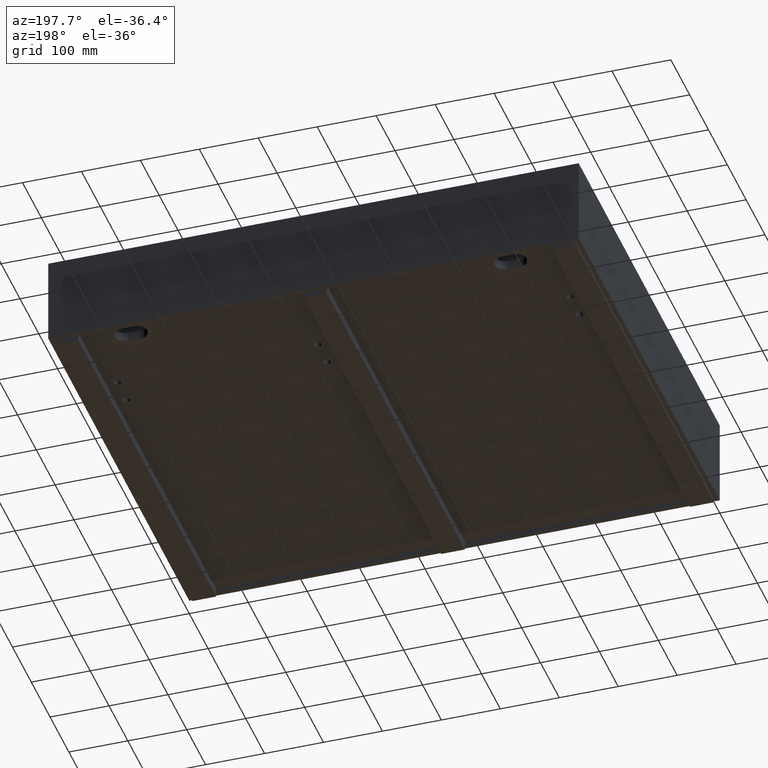
[diagram: clean part render]
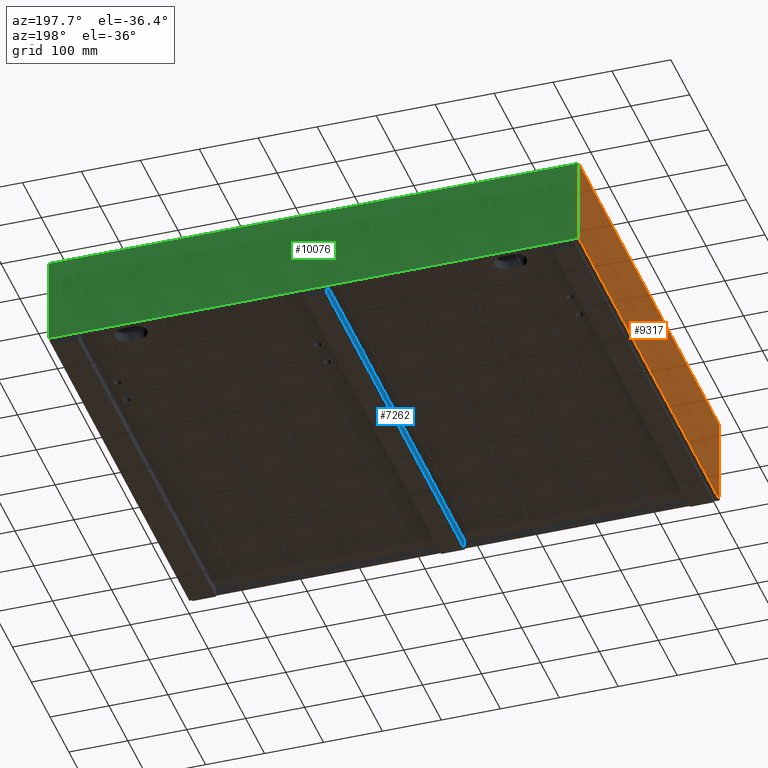
[diagram: same view with three faces highlighted in distinct colors, each labeled with its STEP entity id]
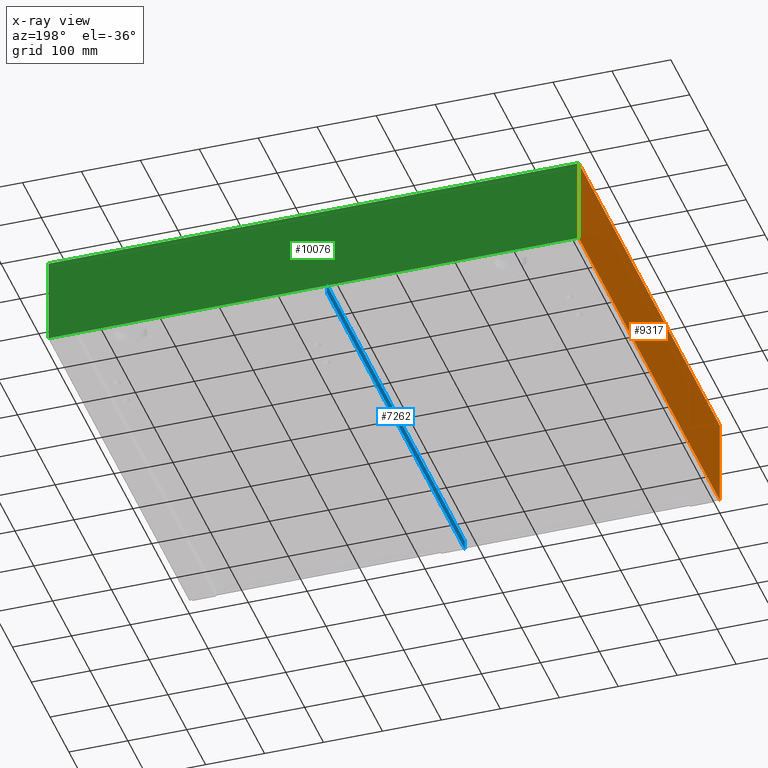
[diagram: x-ray of the same camera — body ghosted, the three highlighted faces saturated]
A machine part, auxiliary view with three faces highlighted in distinct colors.
The next image is the same camera in x-ray (body ghosted, the three faces saturated) — at least one of them is partly hidden behind the body in this view.
Their STEP definitions:

[orange] entity #9317 — the highlighted planar face has unit normal (1, 0, -0).
#1019 = LINE ( 'NONE', #4453, #10486 ) ;
#1508 = DIRECTION ( 'NONE',  ( -1.734723475976806709E-18, -2.435219723356112993E-19, -1.000000000000000000 ) ) ;
#1509 = VERTEX_POINT ( 'NONE', #2641 ) ;
#1643 = CARTESIAN_POINT ( 'NONE',  ( -8.673617379884035472E-16, 750.0000000000001137, -150.0000000000000284 ) ) ;
#1646 = ORIENTED_EDGE ( 'NONE', *, *, #7621, .F. ) ;
#1659 = ORIENTED_EDGE ( 'NONE', *, *, #4959, .T. ) ;
#2169 = CARTESIAN_POINT ( 'NONE',  ( -8.673617379884035472E-16, -1.665334536937734811E-13, 1.387778780781445676E-14 ) ) ;
#2297 = VERTEX_POINT ( 'NONE', #6967 ) ;
#2346 = PLANE ( 'NONE',  #5643 ) ;
#2641 = CARTESIAN_POINT ( 'NONE',  ( -8.673617379884035472E-16, -5.551115123125782702E-14, -150.0000000000000284 ) ) ;
#2865 = LINE ( 'NONE', #6319, #5410 ) ;
#3049 = EDGE_CURVE ( 'NONE', #1509, #9682, #11035, .T. ) ;
#3301 = CARTESIAN_POINT ( 'NONE',  ( -8.673617379884035472E-16, -5.551115123125782702E-14, -150.0000000000000284 ) ) ;
#4200 = ORIENTED_EDGE ( 'NONE', *, *, #6648, .F. ) ;
#4453 = CARTESIAN_POINT ( 'NONE',  ( -8.673617379884035472E-16, 900.2131818450033052, 1.387778780781445676E-14 ) ) ;
#4959 = EDGE_CURVE ( 'NONE', #6953, #1509, #2865, .T. ) ;
#5079 = DIRECTION ( 'NONE',  ( 1.734723475976806709E-18, 2.435219723356112993E-19, 1.000000000000000000 ) ) ;
#5410 = VECTOR ( 'NONE', #9768, 1000.000000000000000 ) ;
#5615 = ORIENTED_EDGE ( 'NONE', *, *, #3049, .T. ) ;
#5643 = AXIS2_PLACEMENT_3D ( 'NONE', #5786, #9237, #1508 ) ;
#5786 = CARTESIAN_POINT ( 'NONE',  ( -8.673617379884035472E-16, 900.2131818450034189, -150.0000000000000284 ) ) ;
#6059 = VECTOR ( 'NONE', #6746, 1000.000000000000000 ) ;
#6319 = CARTESIAN_POINT ( 'NONE',  ( -8.673617379884035472E-16, 900.2131818450034189, -150.0000000000000284 ) ) ;
#6648 = EDGE_CURVE ( 'NONE', #2297, #9682, #1019, .T. ) ;
#6746 = DIRECTION ( 'NONE',  ( 1.734723475976806709E-18, 2.435219723356112993E-19, 1.000000000000000000 ) ) ;
#6953 = VERTEX_POINT ( 'NONE', #10641 ) ;
#6967 = CARTESIAN_POINT ( 'NONE',  ( -8.673617379884035472E-16, 750.0000000000000000, 1.387778780781445676E-14 ) ) ;
#7455 = VECTOR ( 'NONE', #5079, 1000.000000000000000 ) ;
#7621 = EDGE_CURVE ( 'NONE', #6953, #2297, #9376, .T. ) ;
#7906 = DIRECTION ( 'NONE',  ( -1.355252715606880242E-20, -1.000000000000000000, -2.435219723356112993E-19 ) ) ;
#8347 = EDGE_LOOP ( 'NONE', ( #1646, #1659, #5615, #4200 ) ) ;
#9237 = DIRECTION ( 'NONE',  ( 1.000000000000000000, 1.355252715606880242E-20, -1.734723475976806709E-18 ) ) ;
#9317 = ADVANCED_FACE ( 'NONE', ( #10086 ), #2346, .F. ) ;
#9376 = LINE ( 'NONE', #1643, #7455 ) ;
#9682 = VERTEX_POINT ( 'NONE', #2169 ) ;
#9768 = DIRECTION ( 'NONE',  ( -1.355252715606880242E-20, -1.000000000000000000, -2.435219723356112993E-19 ) ) ;
#10086 = FACE_OUTER_BOUND ( 'NONE', #8347, .T. ) ;
#10486 = VECTOR ( 'NONE', #7906, 1000.000000000000000 ) ;
#10641 = CARTESIAN_POINT ( 'NONE',  ( -8.673617379884035472E-16, 750.0000000000001137, -150.0000000000000284 ) ) ;
#11035 = LINE ( 'NONE', #3301, #6059 ) ;

[blue] entity #7262 — the highlighted planar face has unit normal (1, -0, -0).
#65 = AXIS2_PLACEMENT_3D ( 'NONE', #6957, #10393, #2653 ) ;
#86 = FACE_OUTER_BOUND ( 'NONE', #10319, .T. ) ;
#208 = LINE ( 'NONE', #3639, #898 ) ;
#707 = DIRECTION ( 'NONE',  ( 1.423362852083534639E-16, 0.0000000000000000000, 1.000000000000000000 ) ) ;
#898 = VECTOR ( 'NONE', #7088, 1000.000000000000000 ) ;
#1774 = DIRECTION ( 'NONE',  ( 1.423362852083534639E-16, 0.0000000000000000000, 1.000000000000000000 ) ) ;
#2175 = VECTOR ( 'NONE', #1774, 1000.000000000000000 ) ;
#2653 = DIRECTION ( 'NONE',  ( -1.423362852083534639E-16, 0.0000000000000000000, -1.000000000000000000 ) ) ;
#2694 = CARTESIAN_POINT ( 'NONE',  ( 429.9999999999999432, 8.000000000000007105, -141.0000000000002842 ) ) ;
#2927 = DIRECTION ( 'NONE',  ( 7.562828173581198609E-17, 1.000000000000000000, 0.0000000000000000000 ) ) ;
#2982 = VERTEX_POINT ( 'NONE', #4002 ) ;
#3454 = EDGE_CURVE ( 'NONE', #5041, #2982, #7235, .T. ) ;
#3509 = PLANE ( 'NONE',  #65 ) ;
#3639 = CARTESIAN_POINT ( 'NONE',  ( 430.0000000000000000, 741.9999000000000251, -141.0000000000002842 ) ) ;
#3647 = ORIENTED_EDGE ( 'NONE', *, *, #4170, .T. ) ;
#4002 = CARTESIAN_POINT ( 'NONE',  ( 430.0000000000000000, 741.9999000000000251, -158.0000000000003126 ) ) ;
#4170 = EDGE_CURVE ( 'NONE', #4858, #8657, #208, .T. ) ;
#4858 = VERTEX_POINT ( 'NONE', #2694 ) ;
#4979 = LINE ( 'NONE', #8433, #10121 ) ;
#5041 = VERTEX_POINT ( 'NONE', #5573 ) ;
#5573 = CARTESIAN_POINT ( 'NONE',  ( 429.9999999999999432, 8.000000000000007105, -158.0000000000003126 ) ) ;
#5740 = EDGE_CURVE ( 'NONE', #2982, #8657, #6060, .T. ) ;
#6034 = EDGE_CURVE ( 'NONE', #5041, #4858, #4979, .T. ) ;
#6060 = LINE ( 'NONE', #9507, #2175 ) ;
#6816 = VECTOR ( 'NONE', #2927, 1000.000000000000000 ) ;
#6957 = CARTESIAN_POINT ( 'NONE',  ( 430.0000000000000000, 741.9999000000000251, -158.0000000000003126 ) ) ;
#7004 = ORIENTED_EDGE ( 'NONE', *, *, #5740, .F. ) ;
#7088 = DIRECTION ( 'NONE',  ( 7.562828173581198609E-17, 1.000000000000000000, 0.0000000000000000000 ) ) ;
#7235 = LINE ( 'NONE', #10671, #6816 ) ;
#7262 = ADVANCED_FACE ( 'NONE', ( #86 ), #3509, .F. ) ;
#7744 = ORIENTED_EDGE ( 'NONE', *, *, #6034, .T. ) ;
#8433 = CARTESIAN_POINT ( 'NONE',  ( 429.9999999999999432, 8.000000000000007105, -158.0000000000003126 ) ) ;
#8657 = VERTEX_POINT ( 'NONE', #10239 ) ;
#9507 = CARTESIAN_POINT ( 'NONE',  ( 430.0000000000000000, 741.9999000000000251, -158.0000000000003126 ) ) ;
#10121 = VECTOR ( 'NONE', #707, 1000.000000000000000 ) ;
#10239 = CARTESIAN_POINT ( 'NONE',  ( 430.0000000000000000, 741.9999000000000251, -141.0000000000002842 ) ) ;
#10319 = EDGE_LOOP ( 'NONE', ( #3647, #7004, #10910, #7744 ) ) ;
#10393 = DIRECTION ( 'NONE',  ( 1.000000000000000000, -7.562828173581198609E-17, -1.423362852083534639E-16 ) ) ;
#10671 = CARTESIAN_POINT ( 'NONE',  ( 430.0000000000000000, 741.9999000000000251, -158.0000000000003126 ) ) ;
#10910 = ORIENTED_EDGE ( 'NONE', *, *, #3454, .F. ) ;

[green] entity #10076 — the highlighted planar face has unit normal (0, 1, 0).
#314 = LINE ( 'NONE', #3741, #10744 ) ;
#544 = DIRECTION ( 'NONE',  ( 0.0000000000000000000, 0.0000000000000000000, 1.000000000000000000 ) ) ;
#1380 = DIRECTION ( 'NONE',  ( 1.000000000000000000, 0.0000000000000000000, 0.0000000000000000000 ) ) ;
#1459 = VERTEX_POINT ( 'NONE', #6894 ) ;
#1708 = CARTESIAN_POINT ( 'NONE',  ( 0.0000000000000000000, 749.9999000000000251, -150.0000000000000000 ) ) ;
#2098 = CARTESIAN_POINT ( 'NONE',  ( 0.0000000000000000000, 749.9999000000000251, 0.0000000000000000000 ) ) ;
#2291 = CARTESIAN_POINT ( 'NONE',  ( 900.0000000000000000, 749.9999000000000251, -150.0000000000000000 ) ) ;
#3041 = ORIENTED_EDGE ( 'NONE', *, *, #3882, .T. ) ;
#3121 = EDGE_CURVE ( 'NONE', #10032, #6102, #314, .T. ) ;
#3370 = ORIENTED_EDGE ( 'NONE', *, *, #7057, .T. ) ;
#3741 = CARTESIAN_POINT ( 'NONE',  ( 0.0000000000000000000, 749.9999000000000251, -150.0000000000000000 ) ) ;
#3882 = EDGE_CURVE ( 'NONE', #7909, #1459, #5668, .T. ) ;
#3939 = AXIS2_PLACEMENT_3D ( 'NONE', #2098, #5542, #8994 ) ;
#4646 = CARTESIAN_POINT ( 'NONE',  ( 900.0000000000000000, 749.9999000000000251, -150.0000000000000000 ) ) ;
#4812 = LINE ( 'NONE', #8268, #9968 ) ;
#4967 = ORIENTED_EDGE ( 'NONE', *, *, #3121, .T. ) ;
#5127 = EDGE_CURVE ( 'NONE', #1459, #10032, #10034, .T. ) ;
#5542 = DIRECTION ( 'NONE',  ( 0.0000000000000000000, 1.000000000000000000, 0.0000000000000000000 ) ) ;
#5668 = LINE ( 'NONE', #9114, #10074 ) ;
#5736 = DIRECTION ( 'NONE',  ( -0.0000000000000000000, -0.0000000000000000000, -1.000000000000000000 ) ) ;
#6102 = VERTEX_POINT ( 'NONE', #1708 ) ;
#6397 = FACE_OUTER_BOUND ( 'NONE', #7861, .T. ) ;
#6894 = CARTESIAN_POINT ( 'NONE',  ( 900.0000000000000000, 749.9999000000000251, 0.0000000000000000000 ) ) ;
#7057 = EDGE_CURVE ( 'NONE', #6102, #7909, #4812, .T. ) ;
#7194 = DIRECTION ( 'NONE',  ( -1.000000000000000000, -0.0000000000000000000, -0.0000000000000000000 ) ) ;
#7861 = EDGE_LOOP ( 'NONE', ( #3370, #3041, #10166, #4967 ) ) ;
#7909 = VERTEX_POINT ( 'NONE', #8393 ) ;
#8268 = CARTESIAN_POINT ( 'NONE',  ( 0.0000000000000000000, 749.9999000000000251, -150.0000000000000000 ) ) ;
#8393 = CARTESIAN_POINT ( 'NONE',  ( 0.0000000000000000000, 749.9999000000000251, 0.0000000000000000000 ) ) ;
#8994 = DIRECTION ( 'NONE',  ( 0.0000000000000000000, -0.0000000000000000000, 1.000000000000000000 ) ) ;
#9114 = CARTESIAN_POINT ( 'NONE',  ( 0.0000000000000000000, 749.9999000000000251, 0.0000000000000000000 ) ) ;
#9842 = PLANE ( 'NONE',  #3939 ) ;
#9968 = VECTOR ( 'NONE', #544, 1000.000000000000000 ) ;
#10032 = VERTEX_POINT ( 'NONE', #4646 ) ;
#10034 = LINE ( 'NONE', #2291, #10103 ) ;
#10074 = VECTOR ( 'NONE', #1380, 1000.000000000000000 ) ;
#10076 = ADVANCED_FACE ( 'NONE', ( #6397 ), #9842, .T. ) ;
#10103 = VECTOR ( 'NONE', #5736, 1000.000000000000000 ) ;
#10166 = ORIENTED_EDGE ( 'NONE', *, *, #5127, .T. ) ;
#10744 = VECTOR ( 'NONE', #7194, 1000.000000000000000 ) ;